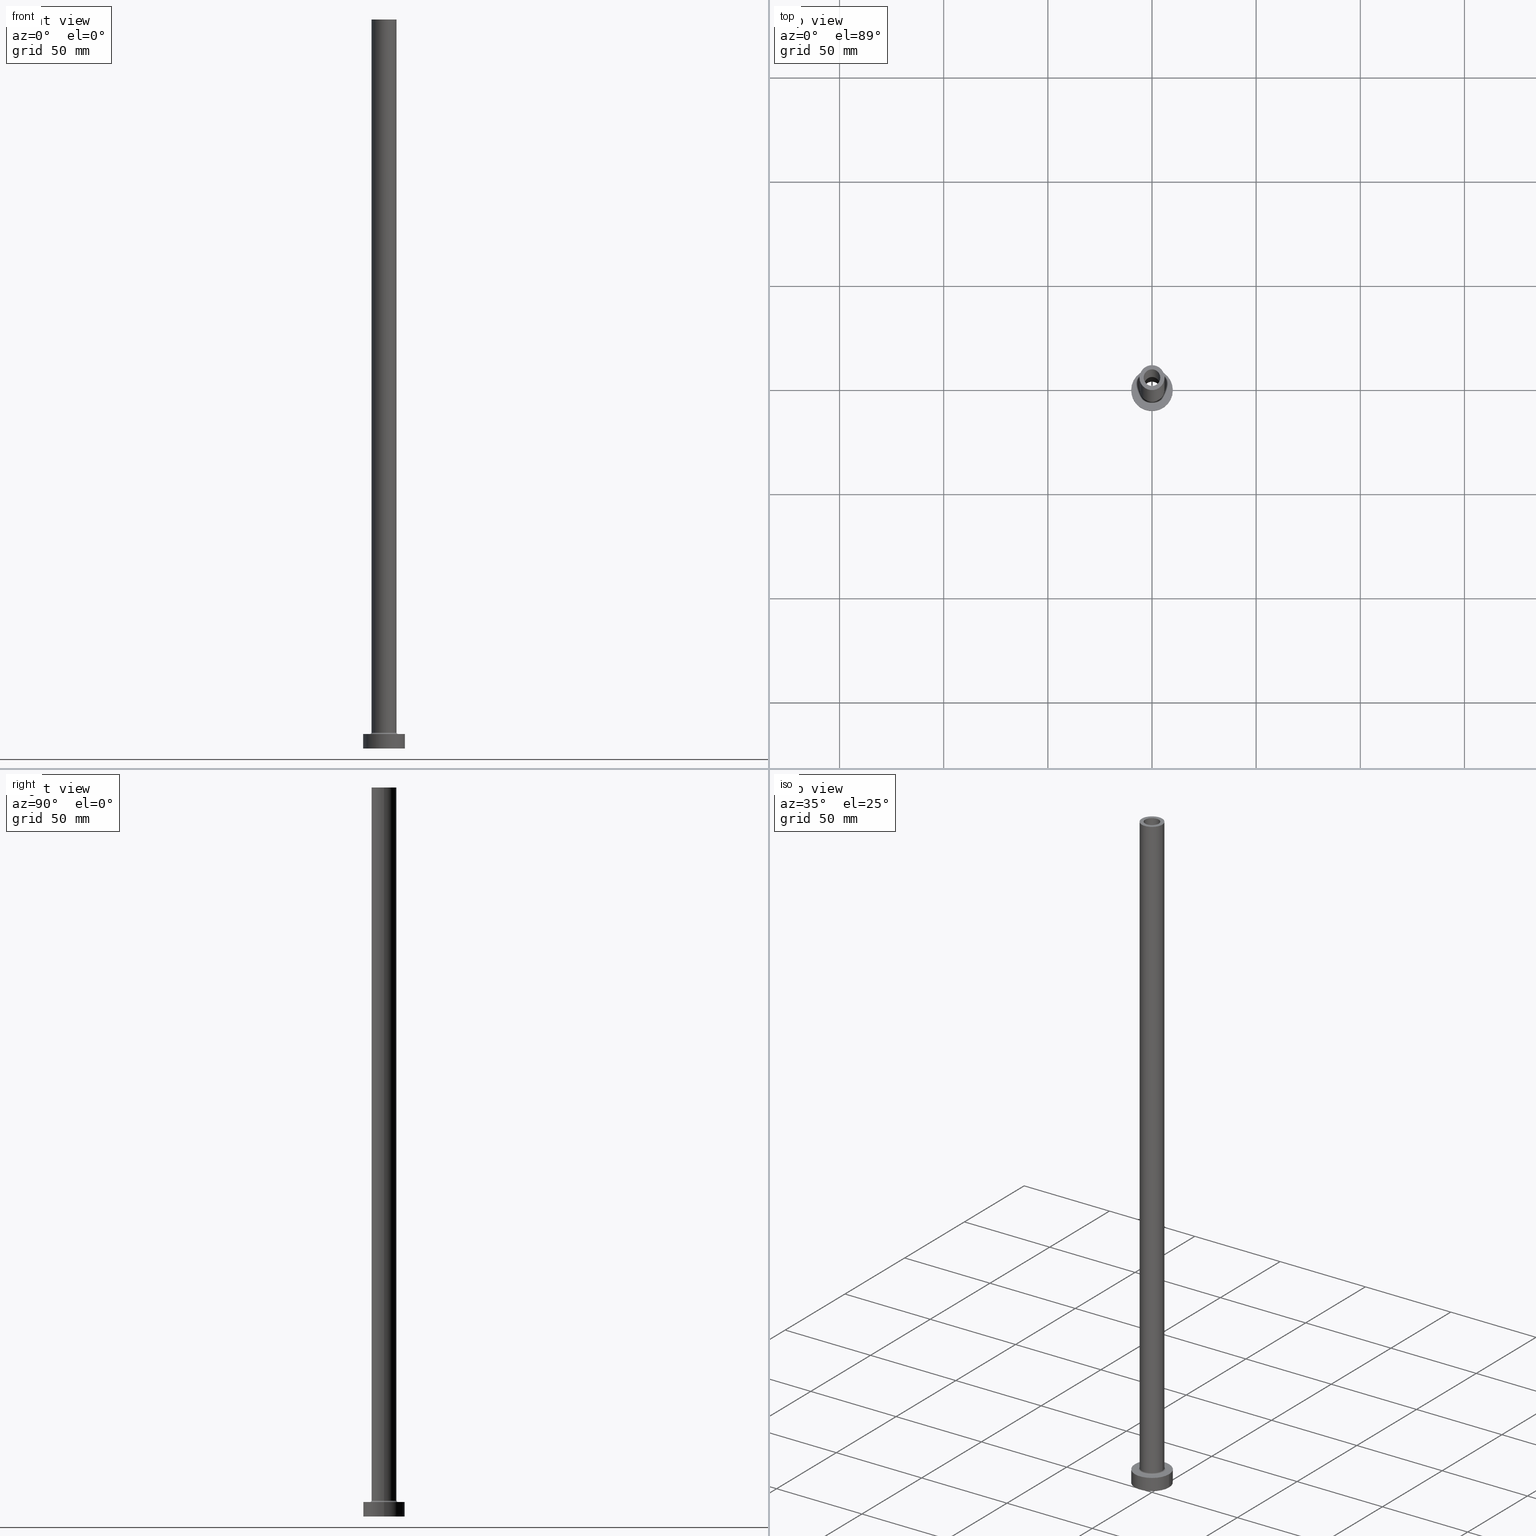
[diagram: canonical four-view strip — front | top / right | iso, engineering-drawing reading convention]
A machine part, canonical four-view strip (front | top / right | iso — engineering-drawing reading convention). The complete STEP part file that produces these views, byte-faithful:
ISO-10303-21;
HEADER;
FILE_DESCRIPTION (( 'STEP AP203' ),
    '1' );
FILE_NAME ('8d3e.STEP',
    '2023-02-13T12:44:29',
    ( '' ),
    ( '' ),
    'SwSTEP 2.0',
    'SolidWorks 2019',
    '' );
FILE_SCHEMA (( 'CONFIG_CONTROL_DESIGN' ));
ENDSEC;

DATA;
#1 = CC_DESIGN_PERSON_AND_ORGANIZATION_ASSIGNMENT ( #415, #119, ( #438 ) ) ;
#2 = APPROVAL_ROLE ( '' ) ;
#3 = DIRECTION ( 'NONE',  ( 0.000000000000000000, 0.000000000000000000, 1.000000000000000000 ) ) ;
#4 = CIRCLE ( 'NONE', #356, 10.00000000000000000 ) ;
#5 = VERTEX_POINT ( 'NONE', #65 ) ;
#6 = FACE_OUTER_BOUND ( 'NONE', #137, .T. ) ;
#7 = ORIENTED_EDGE ( 'NONE', *, *, #191, .F. ) ;
#8 = CARTESIAN_POINT ( 'NONE',  ( 0.000000000000000000, 0.000000000000000000, 7.000000000000000000 ) ) ;
#9 = ORIENTED_EDGE ( 'NONE', *, *, #284, .T. ) ;
#10 = VECTOR ( 'NONE', #448, 1000.000000000000000 ) ;
#11 = DIRECTION ( 'NONE',  ( -1.000000000000000000, 0.000000000000000000, 0.000000000000000000 ) ) ;
#12 = CC_DESIGN_DATE_AND_TIME_ASSIGNMENT ( #305, #20, ( #34 ) ) ;
#13 = DIRECTION ( 'NONE',  ( 1.000000000000000000, 0.000000000000000000, 0.000000000000000000 ) ) ;
#14 = ORIENTED_EDGE ( 'NONE', *, *, #205, .F. ) ;
#15 = CIRCLE ( 'NONE', #165, 6.000000000000000888 ) ;
#16 = DATE_TIME_ROLE ( 'classification_date' ) ;
#17 = SECURITY_CLASSIFICATION ( '', '', #371 ) ;
#18 = EDGE_CURVE ( 'NONE', #331, #348, #451, .T. ) ;
#19 = DIRECTION ( 'NONE',  ( 0.000000000000000000, 0.000000000000000000, -1.000000000000000000 ) ) ;
#20 = DATE_TIME_ROLE ( 'creation_date' ) ;
#21 = CARTESIAN_POINT ( 'NONE',  ( 0.000000000000000000, 0.000000000000000000, 7.000000000000000000 ) ) ;
#22 = DIRECTION ( 'NONE',  ( 1.000000000000000000, 0.000000000000000000, 0.000000000000000000 ) ) ;
#23 = ORIENTED_EDGE ( 'NONE', *, *, #173, .F. ) ;
#24 = EDGE_CURVE ( 'NONE', #460, #359, #37, .T. ) ;
#25 = CARTESIAN_POINT ( 'NONE',  ( -6.700000000000001066, 8.205133554287267548E-16, 7.699999999999985079 ) ) ;
#26 = CYLINDRICAL_SURFACE ( 'NONE', #51, 4.150000000000000355 ) ;
#27 = CARTESIAN_POINT ( 'NONE',  ( 0.000000000000000000, 0.000000000000000000, 0.000000000000000000 ) ) ;
#28 = PRODUCT_DEFINITION_SHAPE ( 'NONE', 'NONE',  #34 ) ;
#29 = ORIENTED_EDGE ( 'NONE', *, *, #18, .F. ) ;
#30 = ORIENTED_EDGE ( 'NONE', *, *, #403, .T. ) ;
#31 = ORIENTED_EDGE ( 'NONE', *, *, #360, .T. ) ;
#32 = VECTOR ( 'NONE', #50, 1000.000000000000000 ) ;
#33 = EDGE_LOOP ( 'NONE', ( #29, #97, #395, #74 ) ) ;
#34 = PRODUCT_DEFINITION ( 'NEZN�M�', '', #438, #261 ) ;
#35 =( GEOMETRIC_REPRESENTATION_CONTEXT ( 3 ) GLOBAL_UNCERTAINTY_ASSIGNED_CONTEXT ( ( #188 ) ) GLOBAL_UNIT_ASSIGNED_CONTEXT ( ( #445, #416, #53 ) ) REPRESENTATION_CONTEXT ( 'NONE', 'WORKASPACE' ) );
#36 = ORIENTED_EDGE ( 'NONE', *, *, #264, .T. ) ;
#37 = CIRCLE ( 'NONE', #163, 10.00000000000000000 ) ;
#38 = CARTESIAN_POINT ( 'NONE',  ( 0.000000000000000000, 0.000000000000000000, 7.000000000000000000 ) ) ;
#39 = CALENDAR_DATE ( 2023, 13, 2 ) ;
#40 = DIRECTION ( 'NONE',  ( -0.000000000000000000, -0.000000000000000000, -1.000000000000000000 ) ) ;
#41 = CARTESIAN_POINT ( 'NONE',  ( -4.000000000000000000, 0.000000000000000000, 305.0000000000000568 ) ) ;
#42 = CIRCLE ( 'NONE', #52, 4.150000000000000355 ) ;
#43 = CARTESIAN_POINT ( 'NONE',  ( 0.000000000000000000, 0.000000000000000000, 0.000000000000000000 ) ) ;
#44 = CARTESIAN_POINT ( 'NONE',  ( -4.150000000000000355, 0.000000000000000000, 305.0000000000000568 ) ) ;
#45 = AXIS2_PLACEMENT_3D ( 'NONE', #25, #106, #250 ) ;
#46 = ORIENTED_EDGE ( 'NONE', *, *, #347, .T. ) ;
#47 = CARTESIAN_POINT ( 'NONE',  ( 0.000000000000000000, 0.000000000000000000, 7.699999999999985079 ) ) ;
#48 = DATE_AND_TIME ( #86, #390 ) ;
#49 = EDGE_LOOP ( 'NONE', ( #219, #246, #279, #272 ) ) ;
#50 = DIRECTION ( 'NONE',  ( -0.000000000000000000, -0.000000000000000000, -1.000000000000000000 ) ) ;
#51 = AXIS2_PLACEMENT_3D ( 'NONE', #337, #152, #364 ) ;
#52 = AXIS2_PLACEMENT_3D ( 'NONE', #286, #327, #325 ) ;
#53 =( NAMED_UNIT ( * ) SI_UNIT ( $, .STERADIAN. ) SOLID_ANGLE_UNIT ( ) );
#54 = PERSON_AND_ORGANIZATION ( #218, #304 ) ;
#55 = CYLINDRICAL_SURFACE ( 'NONE', #68, 4.000000000000000000 ) ;
#56 = CALENDAR_DATE ( 2023, 13, 2 ) ;
#57 = EDGE_CURVE ( 'NONE', #195, #70, #93, .T. ) ;
#58 = AXIS2_PLACEMENT_3D ( 'NONE', #208, #408, #133 ) ;
#59 = CARTESIAN_POINT ( 'NONE',  ( 0.000000000000000000, 0.000000000000000000, 0.000000000000000000 ) ) ;
#60 = DIRECTION ( 'NONE',  ( -1.000000000000000000, 0.000000000000000000, 0.000000000000000000 ) ) ;
#61 = CIRCLE ( 'NONE', #233, 6.700000000000001066 ) ;
#62 = ORIENTED_EDGE ( 'NONE', *, *, #284, .F. ) ;
#63 = ORIENTED_EDGE ( 'NONE', *, *, #427, .T. ) ;
#64 = TOROIDAL_SURFACE ( 'NONE', #411, 6.700000000000001066, 0.6999999999999999556 ) ;
#65 = CARTESIAN_POINT ( 'NONE',  ( 4.000000000000000000, 4.898587196589411843E-16, 350.0000000000000568 ) ) ;
#66 = LINE ( 'NONE', #278, #409 ) ;
#67 = APPROVAL_PERSON_ORGANIZATION ( #433, #419, #2 ) ;
#68 = AXIS2_PLACEMENT_3D ( 'NONE', #126, #164, #300 ) ;
#69 = EDGE_LOOP ( 'NONE', ( #23, #62, #457, #393 ) ) ;
#70 = VERTEX_POINT ( 'NONE', #243 ) ;
#71 = EDGE_CURVE ( 'NONE', #70, #355, #257, .T. ) ;
#72 = VECTOR ( 'NONE', #365, 1000.000000000000000 ) ;
#73 = CIRCLE ( 'NONE', #309, 10.00000000000000000 ) ;
#74 = ORIENTED_EDGE ( 'NONE', *, *, #98, .F. ) ;
#75 = ORIENTED_EDGE ( 'NONE', *, *, #241, .F. ) ;
#76 = EDGE_CURVE ( 'NONE', #5, #108, #328, .T. ) ;
#77 = DIRECTION ( 'NONE',  ( 1.000000000000000000, 0.000000000000000000, 0.000000000000000000 ) ) ;
#78 = CARTESIAN_POINT ( 'NONE',  ( 0.000000000000000000, 0.000000000000000000, 7.000000000000000000 ) ) ;
#79 = ORIENTED_EDGE ( 'NONE', *, *, #258, .F. ) ;
#80 = VECTOR ( 'NONE', #345, 1000.000000000000000 ) ;
#81 = DIRECTION ( 'NONE',  ( 1.000000000000000000, 0.000000000000000000, 0.000000000000000000 ) ) ;
#82 = DIRECTION ( 'NONE',  ( 1.000000000000000000, 0.000000000000000000, 0.000000000000000000 ) ) ;
#83 = ADVANCED_FACE ( 'NONE', ( #193 ), #315, .F. ) ;
#84 = LINE ( 'NONE', #206, #387 ) ;
#85 = COORDINATED_UNIVERSAL_TIME_OFFSET ( 1, 0, .AHEAD. ) ;
#86 = CALENDAR_DATE ( 2023, 13, 2 ) ;
#87 = DIRECTION ( 'NONE',  ( 0.000000000000000000, 0.000000000000000000, 1.000000000000000000 ) ) ;
#88 = CARTESIAN_POINT ( 'NONE',  ( -4.000000000000000000, 0.000000000000000000, 350.0000000000000568 ) ) ;
#89 = DIRECTION ( 'NONE',  ( 0.000000000000000000, 0.000000000000000000, -1.000000000000000000 ) ) ;
#90 = FACE_OUTER_BOUND ( 'NONE', #216, .T. ) ;
#91 = SHAPE_DEFINITION_REPRESENTATION ( #28, #104 ) ;
#92 = CIRCLE ( 'NONE', #342, 4.000000000000000000 ) ;
#93 = LINE ( 'NONE', #281, #140 ) ;
#94 = LOCAL_TIME ( 13, 44, 29.00000000000000000, #366 ) ;
#95 = DIRECTION ( 'NONE',  ( 0.000000000000000000, 0.000000000000000000, 1.000000000000000000 ) ) ;
#96 = VERTEX_POINT ( 'NONE', #146 ) ;
#97 = ORIENTED_EDGE ( 'NONE', *, *, #264, .F. ) ;
#98 = EDGE_CURVE ( 'NONE', #348, #399, #306, .T. ) ;
#99 = DIRECTION ( 'NONE',  ( -1.000000000000000000, 0.000000000000000000, 0.000000000000000000 ) ) ;
#100 = ORIENTED_EDGE ( 'NONE', *, *, #277, .T. ) ;
#101 = AXIS2_PLACEMENT_3D ( 'NONE', #110, #362, #256 ) ;
#102 = DIRECTION ( 'NONE',  ( 1.000000000000000000, 0.000000000000000000, 0.000000000000000000 ) ) ;
#103 = VERTEX_POINT ( 'NONE', #285 ) ;
#104 = ADVANCED_BREP_SHAPE_REPRESENTATION ( '8d3e', ( #312, #145 ), #35 ) ;
#105 = ADVANCED_FACE ( 'NONE', ( #434 ), #394, .T. ) ;
#106 = DIRECTION ( 'NONE',  ( 1.224646799147353207E-16, 1.000000000000000000, -0.000000000000000000 ) ) ;
#107 = APPROVAL_STATUS ( 'not_yet_approved' ) ;
#108 = VERTEX_POINT ( 'NONE', #235 ) ;
#109 = AXIS2_PLACEMENT_3D ( 'NONE', #78, #40, #440 ) ;
#110 = CARTESIAN_POINT ( 'NONE',  ( 0.000000000000000000, 0.000000000000000000, 305.0000000000000568 ) ) ;
#111 = CARTESIAN_POINT ( 'NONE',  ( 0.000000000000000000, 0.000000000000000000, 7.699999999999985079 ) ) ;
#112 = LINE ( 'NONE', #153, #32 ) ;
#113 = AXIS2_PLACEMENT_3D ( 'NONE', #303, #412, #82 ) ;
#114 = ORIENTED_EDGE ( 'NONE', *, *, #397, .F. ) ;
#115 = FACE_OUTER_BOUND ( 'NONE', #367, .T. ) ;
#116 = FACE_OUTER_BOUND ( 'NONE', #388, .T. ) ;
#117 = CC_DESIGN_PERSON_AND_ORGANIZATION_ASSIGNMENT ( #217, #182, ( #251 ) ) ;
#118 = DIRECTION ( 'NONE',  ( 1.000000000000000000, 0.000000000000000000, 0.000000000000000000 ) ) ;
#119 = PERSON_AND_ORGANIZATION_ROLE ( 'design_supplier' ) ;
#120 = DIRECTION ( 'NONE',  ( 0.000000000000000000, 0.000000000000000000, 1.000000000000000000 ) ) ;
#121 = MECHANICAL_CONTEXT ( 'NONE', #147, 'mechanical' ) ;
#122 = ADVANCED_FACE ( 'NONE', ( #370, #90 ), #330, .T. ) ;
#123 = FACE_OUTER_BOUND ( 'NONE', #33, .T. ) ;
#124 = APPROVAL_PERSON_ORGANIZATION ( #54, #302, #199 ) ;
#125 = CARTESIAN_POINT ( 'NONE',  ( 6.700000000000001066, 0.000000000000000000, 6.999999999999992006 ) ) ;
#126 = CARTESIAN_POINT ( 'NONE',  ( 0.000000000000000000, 0.000000000000000000, 350.0000000000000568 ) ) ;
#127 = DATE_AND_TIME ( #56, #198 ) ;
#128 = CARTESIAN_POINT ( 'NONE',  ( -10.00000000000000000, 0.000000000000000000, 0.000000000000000000 ) ) ;
#129 = AXIS2_PLACEMENT_3D ( 'NONE', #132, #418, #77 ) ;
#130 = FACE_BOUND ( 'NONE', #324, .T. ) ;
#131 = PERSON_AND_ORGANIZATION ( #218, #304 ) ;
#132 = CARTESIAN_POINT ( 'NONE',  ( 0.000000000000000000, 0.000000000000000000, 350.0000000000000568 ) ) ;
#133 = DIRECTION ( 'NONE',  ( 1.000000000000000000, 0.000000000000000000, -0.000000000000000000 ) ) ;
#134 = AXIS2_PLACEMENT_3D ( 'NONE', #344, #19, #99 ) ;
#135 = ADVANCED_FACE ( 'NONE', ( #375 ), #55, .F. ) ;
#136 = DIRECTION ( 'NONE',  ( 0.000000000000000000, 0.000000000000000000, 1.000000000000000000 ) ) ;
#137 = EDGE_LOOP ( 'NONE', ( #386, #459 ) ) ;
#138 = ORIENTED_EDGE ( 'NONE', *, *, #277, .F. ) ;
#139 = CARTESIAN_POINT ( 'NONE',  ( 0.000000000000000000, 0.000000000000000000, 350.0000000000000568 ) ) ;
#140 = VECTOR ( 'NONE', #214, 1000.000000000000000 ) ;
#141 = ORIENTED_EDGE ( 'NONE', *, *, #403, .F. ) ;
#142 = AXIS2_PLACEMENT_3D ( 'NONE', #177, #136, #313 ) ;
#143 = EDGE_CURVE ( 'NONE', #399, #348, #61, .T. ) ;
#144 = EDGE_LOOP ( 'NONE', ( #178, #138, #174, #227 ) ) ;
#145 = AXIS2_PLACEMENT_3D ( 'NONE', #446, #339, #13 ) ;
#146 = CARTESIAN_POINT ( 'NONE',  ( -10.00000000000000000, 0.000000000000000000, 7.000000000000000000 ) ) ;
#147 = APPLICATION_CONTEXT ( 'configuration controlled 3d designs of mechanical parts and assemblies' ) ;
#148 = CALENDAR_DATE ( 2023, 13, 2 ) ;
#149 = EDGE_LOOP ( 'NONE', ( #353, #172 ) ) ;
#150 = PLANE ( 'NONE',  #101 ) ;
#151 = ORIENTED_EDGE ( 'NONE', *, *, #410, .F. ) ;
#152 = DIRECTION ( 'NONE',  ( 0.000000000000000000, 0.000000000000000000, -1.000000000000000000 ) ) ;
#153 = CARTESIAN_POINT ( 'NONE',  ( 10.00000000000000000, 1.224646799147353256E-15, 7.000000000000000000 ) ) ;
#154 = DIRECTION ( 'NONE',  ( -0.000000000000000000, -0.000000000000000000, -1.000000000000000000 ) ) ;
#155 = PERSON_AND_ORGANIZATION ( #218, #304 ) ;
#156 = EDGE_LOOP ( 'NONE', ( #79, #252, #351, #151 ) ) ;
#157 = FACE_BOUND ( 'NONE', #316, .T. ) ;
#158 = DIRECTION ( 'NONE',  ( 1.000000000000000000, 0.000000000000000000, 0.000000000000000000 ) ) ;
#159 = EDGE_CURVE ( 'NONE', #349, #379, #454, .T. ) ;
#160 = VERTEX_POINT ( 'NONE', #192 ) ;
#161 = CARTESIAN_POINT ( 'NONE',  ( 10.00000000000000000, 1.224646799147353256E-15, 7.000000000000000000 ) ) ;
#162 = PERSON_AND_ORGANIZATION ( #218, #304 ) ;
#163 = AXIS2_PLACEMENT_3D ( 'NONE', #27, #253, #392 ) ;
#164 = DIRECTION ( 'NONE',  ( 0.000000000000000000, 0.000000000000000000, -1.000000000000000000 ) ) ;
#165 = AXIS2_PLACEMENT_3D ( 'NONE', #239, #95, #22 ) ;
#166 = LINE ( 'NONE', #273, #10 ) ;
#167 = AXIS2_PLACEMENT_3D ( 'NONE', #59, #270, #170 ) ;
#168 = CARTESIAN_POINT ( 'NONE',  ( 0.000000000000000000, 0.000000000000000000, 7.000000000000000000 ) ) ;
#169 = PERSON_AND_ORGANIZATION_ROLE ( 'creator' ) ;
#170 = DIRECTION ( 'NONE',  ( 1.000000000000000000, 0.000000000000000000, 0.000000000000000000 ) ) ;
#171 = DATE_AND_TIME ( #338, #358 ) ;
#172 = ORIENTED_EDGE ( 'NONE', *, *, #159, .T. ) ;
#173 = EDGE_CURVE ( 'NONE', #103, #160, #229, .T. ) ;
#174 = ORIENTED_EDGE ( 'NONE', *, *, #374, .T. ) ;
#175 = AXIS2_PLACEMENT_3D ( 'NONE', #43, #293, #400 ) ;
#176 = CARTESIAN_POINT ( 'NONE',  ( 0.000000000000000000, 0.000000000000000000, 316.7379725676967723 ) ) ;
#177 = CARTESIAN_POINT ( 'NONE',  ( 0.000000000000000000, 0.000000000000000000, 0.000000000000000000 ) ) ;
#178 = ORIENTED_EDGE ( 'NONE', *, *, #354, .F. ) ;
#179 = CC_DESIGN_PERSON_AND_ORGANIZATION_ASSIGNMENT ( #162, #298, ( #17 ) ) ;
#180 = AXIS2_PLACEMENT_3D ( 'NONE', #38, #154, #81 ) ;
#181 = VERTEX_POINT ( 'NONE', #44 ) ;
#182 = PERSON_AND_ORGANIZATION_ROLE ( 'design_owner' ) ;
#183 = EDGE_LOOP ( 'NONE', ( #308, #211, #30, #288 ) ) ;
#184 = ORIENTED_EDGE ( 'NONE', *, *, #76, .T. ) ;
#185 = ADVANCED_FACE ( 'NONE', ( #123 ), #64, .F. ) ;
#186 = CARTESIAN_POINT ( 'NONE',  ( -6.700000000000001066, 8.205133554287267548E-16, 6.999999999999992006 ) ) ;
#187 = APPROVAL_PERSON_ORGANIZATION ( #131, #221, #378 ) ;
#188 = UNCERTAINTY_MEASURE_WITH_UNIT (LENGTH_MEASURE( 1.000000000000000082E-05 ), #445, 'distance_accuracy_value', 'NONE');
#189 = DIRECTION ( 'NONE',  ( 0.000000000000000000, 0.000000000000000000, 1.000000000000000000 ) ) ;
#190 = EDGE_LOOP ( 'NONE', ( #372, #141 ) ) ;
#191 = EDGE_CURVE ( 'NONE', #108, #5, #92, .T. ) ;
#192 = CARTESIAN_POINT ( 'NONE',  ( 6.000000000000000888, 7.347880794884120722E-16, 7.699999999999985079 ) ) ;
#193 = FACE_OUTER_BOUND ( 'NONE', #156, .T. ) ;
#194 = CYLINDRICAL_SURFACE ( 'NONE', #301, 6.000000000000000888 ) ;
#195 = VERTEX_POINT ( 'NONE', #292 ) ;
#196 = CARTESIAN_POINT ( 'NONE',  ( -4.150000000000000355, 0.000000000000000000, 0.000000000000000000 ) ) ;
#197 = ADVANCED_FACE ( 'NONE', ( #116 ), #194, .T. ) ;
#198 = LOCAL_TIME ( 13, 44, 29.00000000000000000, #335 ) ;
#199 = APPROVAL_ROLE ( '' ) ;
#200 = CIRCLE ( 'NONE', #265, 6.000000000000000888 ) ;
#201 = DIRECTION ( 'NONE',  ( 0.000000000000000000, 0.000000000000000000, -1.000000000000000000 ) ) ;
#202 = DIRECTION ( 'NONE',  ( 0.000000000000000000, 0.000000000000000000, 1.000000000000000000 ) ) ;
#203 = APPROVAL_STATUS ( 'not_yet_approved' ) ;
#204 = CARTESIAN_POINT ( 'NONE',  ( 6.700000000000001066, 0.000000000000000000, 7.699999999999985079 ) ) ;
#205 = EDGE_CURVE ( 'NONE', #5, #349, #84, .T. ) ;
#206 = CARTESIAN_POINT ( 'NONE',  ( 4.000000000000000000, 4.898587196589411843E-16, 350.0000000000000568 ) ) ;
#207 = EDGE_LOOP ( 'NONE', ( #14, #184, #461, #423 ) ) ;
#208 = CARTESIAN_POINT ( 'NONE',  ( 0.000000000000000000, 0.000000000000000000, 350.0000000000000568 ) ) ;
#209 = FACE_OUTER_BOUND ( 'NONE', #207, .T. ) ;
#210 = CIRCLE ( 'NONE', #428, 6.000000000000000888 ) ;
#211 = ORIENTED_EDGE ( 'NONE', *, *, #354, .T. ) ;
#212 = CYLINDRICAL_SURFACE ( 'NONE', #332, 10.00000000000000000 ) ;
#213 = ADVANCED_FACE ( 'NONE', ( #389 ), #242, .F. ) ;
#214 = DIRECTION ( 'NONE',  ( 0.000000000000000000, 0.000000000000000000, -1.000000000000000000 ) ) ;
#215 = DIRECTION ( 'NONE',  ( -0.000000000000000000, -0.000000000000000000, -1.000000000000000000 ) ) ;
#216 = EDGE_LOOP ( 'NONE', ( #100, #442 ) ) ;
#217 = PERSON_AND_ORGANIZATION ( #218, #304 ) ;
#218 = PERSON ( 'NEUR�EN�', 'NEUR�EN�', 'NEUR�EN�', ('NEUR�EN�'), ('NEUR�EN�'), ('NEUR�EN�') ) ;
#219 = ORIENTED_EDGE ( 'NONE', *, *, #191, .T. ) ;
#220 = AXIS2_PLACEMENT_3D ( 'NONE', #414, #240, #266 ) ;
#221 = APPROVAL ( #230, 'NEUR�EN�' ) ;
#222 = EDGE_LOOP ( 'NONE', ( #439, #432, #346, #46 ) ) ;
#223 = DATE_AND_TIME ( #39, #326 ) ;
#224 = CYLINDRICAL_SURFACE ( 'NONE', #109, 10.00000000000000000 ) ;
#225 = DIRECTION ( 'NONE',  ( 1.000000000000000000, 0.000000000000000000, 0.000000000000000000 ) ) ;
#226 = CC_DESIGN_PERSON_AND_ORGANIZATION_ASSIGNMENT ( #234, #169, ( #438 ) ) ;
#227 = ORIENTED_EDGE ( 'NONE', *, *, #24, .T. ) ;
#228 = CC_DESIGN_SECURITY_CLASSIFICATION ( #17, ( #438 ) ) ;
#229 = LINE ( 'NONE', #369, #72 ) ;
#230 = APPROVAL_STATUS ( 'not_yet_approved' ) ;
#231 = AXIS2_PLACEMENT_3D ( 'NONE', #111, #189, #225 ) ;
#232 = PLANE ( 'NONE',  #58 ) ;
#233 = AXIS2_PLACEMENT_3D ( 'NONE', #168, #444, #447 ) ;
#234 = PERSON_AND_ORGANIZATION ( #218, #304 ) ;
#235 = CARTESIAN_POINT ( 'NONE',  ( -4.000000000000000000, 0.000000000000000000, 350.0000000000000568 ) ) ;
#236 = DIRECTION ( 'NONE',  ( 1.000000000000000000, 0.000000000000000000, 0.000000000000000000 ) ) ;
#237 = DIRECTION ( 'NONE',  ( 0.000000000000000000, 0.000000000000000000, 1.000000000000000000 ) ) ;
#238 = CARTESIAN_POINT ( 'NONE',  ( 0.000000000000000000, 0.000000000000000000, 305.0000000000000568 ) ) ;
#239 = CARTESIAN_POINT ( 'NONE',  ( 0.000000000000000000, 0.000000000000000000, 7.699999999999985079 ) ) ;
#240 = DIRECTION ( 'NONE',  ( 0.000000000000000000, 0.000000000000000000, 1.000000000000000000 ) ) ;
#241 = EDGE_CURVE ( 'NONE', #336, #331, #66, .T. ) ;
#242 = CYLINDRICAL_SURFACE ( 'NONE', #363, 4.150000000000000355 ) ;
#243 = CARTESIAN_POINT ( 'NONE',  ( 4.150000000000000355, 5.082284216461515156E-16, 0.000000000000000000 ) ) ;
#244 = PLANE ( 'NONE',  #142 ) ;
#245 = CLOSED_SHELL ( 'NONE', ( #135, #213, #83, #197, #320, #341, #122, #268, #105, #391, #185, #334, #368, #322 ) ) ;
#246 = ORIENTED_EDGE ( 'NONE', *, *, #205, .T. ) ;
#247 = ORIENTED_EDGE ( 'NONE', *, *, #347, .F. ) ;
#248 = CARTESIAN_POINT ( 'NONE',  ( -6.000000000000000888, 0.000000000000000000, 7.699999999999985079 ) ) ;
#249 = PRODUCT_RELATED_PRODUCT_CATEGORY ( 'detail', '', ( #251 ) ) ;
#250 = DIRECTION ( 'NONE',  ( -1.000000000000000000, 1.224646799147353454E-16, 0.000000000000000000 ) ) ;
#251 = PRODUCT ( '8d3e', '8d3e', '', ( #121 ) ) ;
#252 = ORIENTED_EDGE ( 'NONE', *, *, #18, .T. ) ;
#253 = DIRECTION ( 'NONE',  ( 0.000000000000000000, 0.000000000000000000, 1.000000000000000000 ) ) ;
#254 = CC_DESIGN_PERSON_AND_ORGANIZATION_ASSIGNMENT ( #155, #291, ( #34 ) ) ;
#255 = EDGE_LOOP ( 'NONE', ( #31, #259, #383, #114 ) ) ;
#256 = DIRECTION ( 'NONE',  ( 1.000000000000000000, 0.000000000000000000, -0.000000000000000000 ) ) ;
#257 = CIRCLE ( 'NONE', #269, 4.150000000000000355 ) ;
#258 = EDGE_CURVE ( 'NONE', #331, #160, #210, .T. ) ;
#259 = ORIENTED_EDGE ( 'NONE', *, *, #57, .T. ) ;
#260 = DIRECTION ( 'NONE',  ( 1.000000000000000000, 0.000000000000000000, 0.000000000000000000 ) ) ;
#261 = DESIGN_CONTEXT ( 'detailed design', #424, 'design' ) ;
#262 = CARTESIAN_POINT ( 'NONE',  ( 10.00000000000000000, 1.224646799147353256E-15, 0.000000000000000000 ) ) ;
#263 = DIRECTION ( 'NONE',  ( -0.000000000000000000, -0.000000000000000000, -1.000000000000000000 ) ) ;
#264 = EDGE_CURVE ( 'NONE', #160, #331, #15, .T. ) ;
#265 = AXIS2_PLACEMENT_3D ( 'NONE', #139, #202, #280 ) ;
#266 = DIRECTION ( 'NONE',  ( 1.000000000000000000, 0.000000000000000000, 0.000000000000000000 ) ) ;
#267 = CIRCLE ( 'NONE', #417, 4.150000000000000355 ) ;
#268 = ADVANCED_FACE ( 'NONE', ( #130, #380 ), #244, .F. ) ;
#269 = AXIS2_PLACEMENT_3D ( 'NONE', #429, #321, #102 ) ;
#270 = DIRECTION ( 'NONE',  ( 0.000000000000000000, 0.000000000000000000, 1.000000000000000000 ) ) ;
#271 = DIRECTION ( 'NONE',  ( 1.000000000000000000, 0.000000000000000000, 0.000000000000000000 ) ) ;
#272 = ORIENTED_EDGE ( 'NONE', *, *, #437, .F. ) ;
#273 = CARTESIAN_POINT ( 'NONE',  ( -4.150000000000000355, 0.000000000000000000, 316.7379725676967723 ) ) ;
#274 = CIRCLE ( 'NONE', #343, 4.000000000000000000 ) ;
#275 = DIRECTION ( 'NONE',  ( 0.000000000000000000, 0.000000000000000000, -1.000000000000000000 ) ) ;
#276 = ORIENTED_EDGE ( 'NONE', *, *, #427, .F. ) ;
#277 = EDGE_CURVE ( 'NONE', #96, #425, #4, .T. ) ;
#278 = CARTESIAN_POINT ( 'NONE',  ( -6.000000000000000888, 0.000000000000000000, 350.0000000000000568 ) ) ;
#279 = ORIENTED_EDGE ( 'NONE', *, *, #441, .F. ) ;
#280 = DIRECTION ( 'NONE',  ( 1.000000000000000000, 0.000000000000000000, 0.000000000000000000 ) ) ;
#281 = CARTESIAN_POINT ( 'NONE',  ( 4.150000000000000355, 5.082284216461515156E-16, 316.7379725676967723 ) ) ;
#282 = CIRCLE ( 'NONE', #220, 6.000000000000000888 ) ;
#283 = ORIENTED_EDGE ( 'NONE', *, *, #71, .F. ) ;
#284 = EDGE_CURVE ( 'NONE', #336, #103, #200, .T. ) ;
#285 = CARTESIAN_POINT ( 'NONE',  ( 6.000000000000000888, 7.347880794884120722E-16, 350.0000000000000568 ) ) ;
#286 = CARTESIAN_POINT ( 'NONE',  ( 0.000000000000000000, 0.000000000000000000, 305.0000000000000568 ) ) ;
#287 = VECTOR ( 'NONE', #290, 1000.000000000000000 ) ;
#288 = ORIENTED_EDGE ( 'NONE', *, *, #374, .F. ) ;
#289 = FACE_BOUND ( 'NONE', #149, .T. ) ;
#290 = DIRECTION ( 'NONE',  ( -0.000000000000000000, -0.000000000000000000, -1.000000000000000000 ) ) ;
#291 = PERSON_AND_ORGANIZATION_ROLE ( 'creator' ) ;
#292 = CARTESIAN_POINT ( 'NONE',  ( 4.150000000000000355, 5.082284216461515156E-16, 305.0000000000000568 ) ) ;
#293 = DIRECTION ( 'NONE',  ( -0.000000000000000000, -0.000000000000000000, -1.000000000000000000 ) ) ;
#294 = CC_DESIGN_APPROVAL ( #419, ( #34 ) ) ;
#295 = CARTESIAN_POINT ( 'NONE',  ( 0.000000000000000000, 0.000000000000000000, 350.0000000000000568 ) ) ;
#296 = CC_DESIGN_DATE_AND_TIME_ASSIGNMENT ( #171, #16, ( #17 ) ) ;
#297 = LINE ( 'NONE', #88, #80 ) ;
#298 = PERSON_AND_ORGANIZATION_ROLE ( 'classification_officer' ) ;
#299 = DIRECTION ( 'NONE',  ( 0.000000000000000000, -1.000000000000000000, 0.000000000000000000 ) ) ;
#300 = DIRECTION ( 'NONE',  ( -1.000000000000000000, 0.000000000000000000, 0.000000000000000000 ) ) ;
#301 = AXIS2_PLACEMENT_3D ( 'NONE', #295, #263, #407 ) ;
#302 = APPROVAL ( #203, 'NEUR�EN�' ) ;
#303 = CARTESIAN_POINT ( 'NONE',  ( 0.000000000000000000, 0.000000000000000000, 305.0000000000000568 ) ) ;
#304 = ORGANIZATION ( 'NEUR�EN�', 'NEUR�EN�', '' ) ;
#305 = DATE_AND_TIME ( #148, #94 ) ;
#306 = CIRCLE ( 'NONE', #180, 6.700000000000001066 ) ;
#307 = CIRCLE ( 'NONE', #175, 4.150000000000000355 ) ;
#308 = ORIENTED_EDGE ( 'NONE', *, *, #452, .F. ) ;
#309 = AXIS2_PLACEMENT_3D ( 'NONE', #21, #87, #236 ) ;
#310 = DIRECTION ( 'NONE',  ( -1.000000000000000000, 0.000000000000000000, 0.000000000000000000 ) ) ;
#311 = ORIENTED_EDGE ( 'NONE', *, *, #76, .F. ) ;
#312 = MANIFOLD_SOLID_BREP ( 'Odebrat vysunut�m4', #245 ) ;
#313 = DIRECTION ( 'NONE',  ( 1.000000000000000000, 0.000000000000000000, -0.000000000000000000 ) ) ;
#314 = EDGE_LOOP ( 'NONE', ( #317, #421 ) ) ;
#315 = TOROIDAL_SURFACE ( 'NONE', #231, 6.700000000000001066, 0.6999999999999999556 ) ;
#316 = EDGE_LOOP ( 'NONE', ( #7, #311 ) ) ;
#317 = ORIENTED_EDGE ( 'NONE', *, *, #143, .T. ) ;
#318 = APPLICATION_PROTOCOL_DEFINITION ( 'international standard', 'config_control_design', 1994, #424 ) ;
#319 = CIRCLE ( 'NONE', #167, 10.00000000000000000 ) ;
#320 = ADVANCED_FACE ( 'NONE', ( #456 ), #212, .T. ) ;
#321 = DIRECTION ( 'NONE',  ( -0.000000000000000000, -0.000000000000000000, -1.000000000000000000 ) ) ;
#322 = ADVANCED_FACE ( 'NONE', ( #209 ), #422, .F. ) ;
#323 = CARTESIAN_POINT ( 'NONE',  ( 4.000000000000000000, 4.898587196589411843E-16, 305.0000000000000568 ) ) ;
#324 = EDGE_LOOP ( 'NONE', ( #247, #283 ) ) ;
#325 = DIRECTION ( 'NONE',  ( 1.000000000000000000, 0.000000000000000000, 0.000000000000000000 ) ) ;
#326 = LOCAL_TIME ( 13, 44, 29.00000000000000000, #398 ) ;
#327 = DIRECTION ( 'NONE',  ( 0.000000000000000000, 0.000000000000000000, 1.000000000000000000 ) ) ;
#328 = CIRCLE ( 'NONE', #129, 4.000000000000000000 ) ;
#329 = DIRECTION ( 'NONE',  ( 0.000000000000000000, 0.000000000000000000, 1.000000000000000000 ) ) ;
#330 = PLANE ( 'NONE',  #406 ) ;
#331 = VERTEX_POINT ( 'NONE', #248 ) ;
#332 = AXIS2_PLACEMENT_3D ( 'NONE', #385, #215, #60 ) ;
#333 = CARTESIAN_POINT ( 'NONE',  ( 0.000000000000000000, 0.000000000000000000, 350.0000000000000568 ) ) ;
#334 = ADVANCED_FACE ( 'NONE', ( #350 ), #26, .F. ) ;
#335 = COORDINATED_UNIVERSAL_TIME_OFFSET ( 1, 0, .AHEAD. ) ;
#336 = VERTEX_POINT ( 'NONE', #396 ) ;
#337 = CARTESIAN_POINT ( 'NONE',  ( 0.000000000000000000, 0.000000000000000000, 316.7379725676967723 ) ) ;
#338 = CALENDAR_DATE ( 2023, 13, 2 ) ;
#339 = DIRECTION ( 'NONE',  ( 0.000000000000000000, 0.000000000000000000, 1.000000000000000000 ) ) ;
#340 = APPROVAL_DATE_TIME ( #127, #221 ) ;
#341 = ADVANCED_FACE ( 'NONE', ( #361 ), #224, .T. ) ;
#342 = AXIS2_PLACEMENT_3D ( 'NONE', #333, #329, #158 ) ;
#343 = AXIS2_PLACEMENT_3D ( 'NONE', #238, #120, #450 ) ;
#344 = CARTESIAN_POINT ( 'NONE',  ( 0.000000000000000000, 0.000000000000000000, 350.0000000000000568 ) ) ;
#345 = DIRECTION ( 'NONE',  ( 0.000000000000000000, 0.000000000000000000, -1.000000000000000000 ) ) ;
#346 = ORIENTED_EDGE ( 'NONE', *, *, #397, .T. ) ;
#347 = EDGE_CURVE ( 'NONE', #355, #70, #307, .T. ) ;
#348 = VERTEX_POINT ( 'NONE', #186 ) ;
#349 = VERTEX_POINT ( 'NONE', #323 ) ;
#350 = FACE_OUTER_BOUND ( 'NONE', #222, .T. ) ;
#351 = ORIENTED_EDGE ( 'NONE', *, *, #143, .F. ) ;
#352 = DIRECTION ( 'NONE',  ( -0.000000000000000000, -0.000000000000000000, -1.000000000000000000 ) ) ;
#353 = ORIENTED_EDGE ( 'NONE', *, *, #441, .T. ) ;
#354 = EDGE_CURVE ( 'NONE', #425, #359, #112, .T. ) ;
#355 = VERTEX_POINT ( 'NONE', #196 ) ;
#356 = AXIS2_PLACEMENT_3D ( 'NONE', #458, #426, #271 ) ;
#357 = CARTESIAN_POINT ( 'NONE',  ( 0.000000000000000000, 0.000000000000000000, 350.0000000000000568 ) ) ;
#358 = LOCAL_TIME ( 13, 44, 29.00000000000000000, #376 ) ;
#359 = VERTEX_POINT ( 'NONE', #262 ) ;
#360 = EDGE_CURVE ( 'NONE', #181, #195, #267, .T. ) ;
#361 = FACE_OUTER_BOUND ( 'NONE', #144, .T. ) ;
#362 = DIRECTION ( 'NONE',  ( 0.000000000000000000, 0.000000000000000000, 1.000000000000000000 ) ) ;
#363 = AXIS2_PLACEMENT_3D ( 'NONE', #176, #275, #310 ) ;
#364 = DIRECTION ( 'NONE',  ( -1.000000000000000000, 0.000000000000000000, 0.000000000000000000 ) ) ;
#365 = DIRECTION ( 'NONE',  ( -0.000000000000000000, -0.000000000000000000, -1.000000000000000000 ) ) ;
#366 = COORDINATED_UNIVERSAL_TIME_OFFSET ( 1, 0, .AHEAD. ) ;
#367 = EDGE_LOOP ( 'NONE', ( #9, #63 ) ) ;
#368 = ADVANCED_FACE ( 'NONE', ( #289, #6 ), #150, .F. ) ;
#369 = CARTESIAN_POINT ( 'NONE',  ( 6.000000000000000888, 7.347880794884120722E-16, 350.0000000000000568 ) ) ;
#370 = FACE_BOUND ( 'NONE', #314, .T. ) ;
#371 = SECURITY_CLASSIFICATION_LEVEL ( 'unclassified' ) ;
#372 = ORIENTED_EDGE ( 'NONE', *, *, #24, .F. ) ;
#373 = APPLICATION_PROTOCOL_DEFINITION ( 'international standard', 'config_control_design', 1994, #147 ) ;
#374 = EDGE_CURVE ( 'NONE', #96, #460, #402, .T. ) ;
#375 = FACE_OUTER_BOUND ( 'NONE', #49, .T. ) ;
#376 = COORDINATED_UNIVERSAL_TIME_OFFSET ( 1, 0, .AHEAD. ) ;
#377 = DIRECTION ( 'NONE',  ( 1.000000000000000000, 0.000000000000000000, -0.000000000000000000 ) ) ;
#378 = APPROVAL_ROLE ( '' ) ;
#379 = VERTEX_POINT ( 'NONE', #41 ) ;
#380 = FACE_OUTER_BOUND ( 'NONE', #190, .T. ) ;
#381 = AXIS2_PLACEMENT_3D ( 'NONE', #204, #299, #201 ) ;
#382 = CARTESIAN_POINT ( 'NONE',  ( 0.000000000000000000, 0.000000000000000000, 7.699999999999985079 ) ) ;
#383 = ORIENTED_EDGE ( 'NONE', *, *, #71, .T. ) ;
#384 = EDGE_CURVE ( 'NONE', #195, #181, #42, .T. ) ;
#385 = CARTESIAN_POINT ( 'NONE',  ( 0.000000000000000000, 0.000000000000000000, 7.000000000000000000 ) ) ;
#386 = ORIENTED_EDGE ( 'NONE', *, *, #360, .F. ) ;
#387 = VECTOR ( 'NONE', #89, 1000.000000000000000 ) ;
#388 = EDGE_LOOP ( 'NONE', ( #276, #455, #36, #75 ) ) ;
#389 = FACE_OUTER_BOUND ( 'NONE', #255, .T. ) ;
#390 = LOCAL_TIME ( 13, 44, 29.00000000000000000, #85 ) ;
#391 = ADVANCED_FACE ( 'NONE', ( #157, #115 ), #232, .T. ) ;
#392 = DIRECTION ( 'NONE',  ( 1.000000000000000000, 0.000000000000000000, 0.000000000000000000 ) ) ;
#393 = ORIENTED_EDGE ( 'NONE', *, *, #258, .T. ) ;
#394 = CYLINDRICAL_SURFACE ( 'NONE', #435, 6.000000000000000888 ) ;
#395 = ORIENTED_EDGE ( 'NONE', *, *, #410, .T. ) ;
#396 = CARTESIAN_POINT ( 'NONE',  ( -6.000000000000000888, 0.000000000000000000, 350.0000000000000568 ) ) ;
#397 = EDGE_CURVE ( 'NONE', #181, #355, #166, .T. ) ;
#398 = COORDINATED_UNIVERSAL_TIME_OFFSET ( 1, 0, .AHEAD. ) ;
#399 = VERTEX_POINT ( 'NONE', #125 ) ;
#400 = DIRECTION ( 'NONE',  ( 1.000000000000000000, 0.000000000000000000, 0.000000000000000000 ) ) ;
#401 = APPROVAL_DATE_TIME ( #223, #419 ) ;
#402 = LINE ( 'NONE', #405, #287 ) ;
#403 = EDGE_CURVE ( 'NONE', #359, #460, #319, .T. ) ;
#404 = CARTESIAN_POINT ( 'NONE',  ( 0.000000000000000000, 0.000000000000000000, 305.0000000000000568 ) ) ;
#405 = CARTESIAN_POINT ( 'NONE',  ( -10.00000000000000000, 0.000000000000000000, 7.000000000000000000 ) ) ;
#406 = AXIS2_PLACEMENT_3D ( 'NONE', #8, #237, #377 ) ;
#407 = DIRECTION ( 'NONE',  ( -1.000000000000000000, 0.000000000000000000, 0.000000000000000000 ) ) ;
#408 = DIRECTION ( 'NONE',  ( 0.000000000000000000, 0.000000000000000000, 1.000000000000000000 ) ) ;
#409 = VECTOR ( 'NONE', #352, 1000.000000000000000 ) ;
#410 = EDGE_CURVE ( 'NONE', #160, #399, #430, .T. ) ;
#411 = AXIS2_PLACEMENT_3D ( 'NONE', #47, #413, #118 ) ;
#412 = DIRECTION ( 'NONE',  ( 0.000000000000000000, 0.000000000000000000, 1.000000000000000000 ) ) ;
#413 = DIRECTION ( 'NONE',  ( 0.000000000000000000, 0.000000000000000000, 1.000000000000000000 ) ) ;
#414 = CARTESIAN_POINT ( 'NONE',  ( 0.000000000000000000, 0.000000000000000000, 350.0000000000000568 ) ) ;
#415 = PERSON_AND_ORGANIZATION ( #218, #304 ) ;
#416 =( NAMED_UNIT ( * ) PLANE_ANGLE_UNIT ( ) SI_UNIT ( $, .RADIAN. ) );
#417 = AXIS2_PLACEMENT_3D ( 'NONE', #404, #443, #260 ) ;
#418 = DIRECTION ( 'NONE',  ( 0.000000000000000000, 0.000000000000000000, 1.000000000000000000 ) ) ;
#419 = APPROVAL ( #107, 'NEUR�EN�' ) ;
#420 = DIRECTION ( 'NONE',  ( 1.000000000000000000, 0.000000000000000000, 0.000000000000000000 ) ) ;
#421 = ORIENTED_EDGE ( 'NONE', *, *, #98, .T. ) ;
#422 = CYLINDRICAL_SURFACE ( 'NONE', #134, 4.000000000000000000 ) ;
#423 = ORIENTED_EDGE ( 'NONE', *, *, #159, .F. ) ;
#424 = APPLICATION_CONTEXT ( 'configuration controlled 3d designs of mechanical parts and assemblies' ) ;
#425 = VERTEX_POINT ( 'NONE', #161 ) ;
#426 = DIRECTION ( 'NONE',  ( 0.000000000000000000, 0.000000000000000000, 1.000000000000000000 ) ) ;
#427 = EDGE_CURVE ( 'NONE', #103, #336, #282, .T. ) ;
#428 = AXIS2_PLACEMENT_3D ( 'NONE', #382, #3, #420 ) ;
#429 = CARTESIAN_POINT ( 'NONE',  ( 0.000000000000000000, 0.000000000000000000, 0.000000000000000000 ) ) ;
#430 = CIRCLE ( 'NONE', #381, 0.7000000000000000666 ) ;
#431 = CC_DESIGN_APPROVAL ( #302, ( #438 ) ) ;
#432 = ORIENTED_EDGE ( 'NONE', *, *, #384, .T. ) ;
#433 = PERSON_AND_ORGANIZATION ( #218, #304 ) ;
#434 = FACE_OUTER_BOUND ( 'NONE', #69, .T. ) ;
#435 = AXIS2_PLACEMENT_3D ( 'NONE', #357, #436, #11 ) ;
#436 = DIRECTION ( 'NONE',  ( -0.000000000000000000, -0.000000000000000000, -1.000000000000000000 ) ) ;
#437 = EDGE_CURVE ( 'NONE', #108, #379, #297, .T. ) ;
#438 = PRODUCT_DEFINITION_FORMATION_WITH_SPECIFIED_SOURCE ( 'LIBOVOLN�', '', #251, .NOT_KNOWN. ) ;
#439 = ORIENTED_EDGE ( 'NONE', *, *, #57, .F. ) ;
#440 = DIRECTION ( 'NONE',  ( -1.000000000000000000, 0.000000000000000000, 0.000000000000000000 ) ) ;
#441 = EDGE_CURVE ( 'NONE', #379, #349, #274, .T. ) ;
#442 = ORIENTED_EDGE ( 'NONE', *, *, #452, .T. ) ;
#443 = DIRECTION ( 'NONE',  ( 0.000000000000000000, 0.000000000000000000, 1.000000000000000000 ) ) ;
#444 = DIRECTION ( 'NONE',  ( -0.000000000000000000, -0.000000000000000000, -1.000000000000000000 ) ) ;
#445 =( LENGTH_UNIT ( ) NAMED_UNIT ( * ) SI_UNIT ( .MILLI., .METRE. ) );
#446 = CARTESIAN_POINT ( 'NONE',  ( 0.000000000000000000, 0.000000000000000000, 0.000000000000000000 ) ) ;
#447 = DIRECTION ( 'NONE',  ( 1.000000000000000000, 0.000000000000000000, 0.000000000000000000 ) ) ;
#448 = DIRECTION ( 'NONE',  ( 0.000000000000000000, 0.000000000000000000, -1.000000000000000000 ) ) ;
#449 = CC_DESIGN_APPROVAL ( #221, ( #17 ) ) ;
#450 = DIRECTION ( 'NONE',  ( 1.000000000000000000, 0.000000000000000000, 0.000000000000000000 ) ) ;
#451 = CIRCLE ( 'NONE', #45, 0.7000000000000000666 ) ;
#452 = EDGE_CURVE ( 'NONE', #425, #96, #73, .T. ) ;
#453 = APPROVAL_DATE_TIME ( #48, #302 ) ;
#454 = CIRCLE ( 'NONE', #113, 4.000000000000000000 ) ;
#455 = ORIENTED_EDGE ( 'NONE', *, *, #173, .T. ) ;
#456 = FACE_OUTER_BOUND ( 'NONE', #183, .T. ) ;
#457 = ORIENTED_EDGE ( 'NONE', *, *, #241, .T. ) ;
#458 = CARTESIAN_POINT ( 'NONE',  ( 0.000000000000000000, 0.000000000000000000, 7.000000000000000000 ) ) ;
#459 = ORIENTED_EDGE ( 'NONE', *, *, #384, .F. ) ;
#460 = VERTEX_POINT ( 'NONE', #128 ) ;
#461 = ORIENTED_EDGE ( 'NONE', *, *, #437, .T. ) ;
ENDSEC;
END-ISO-10303-21;
